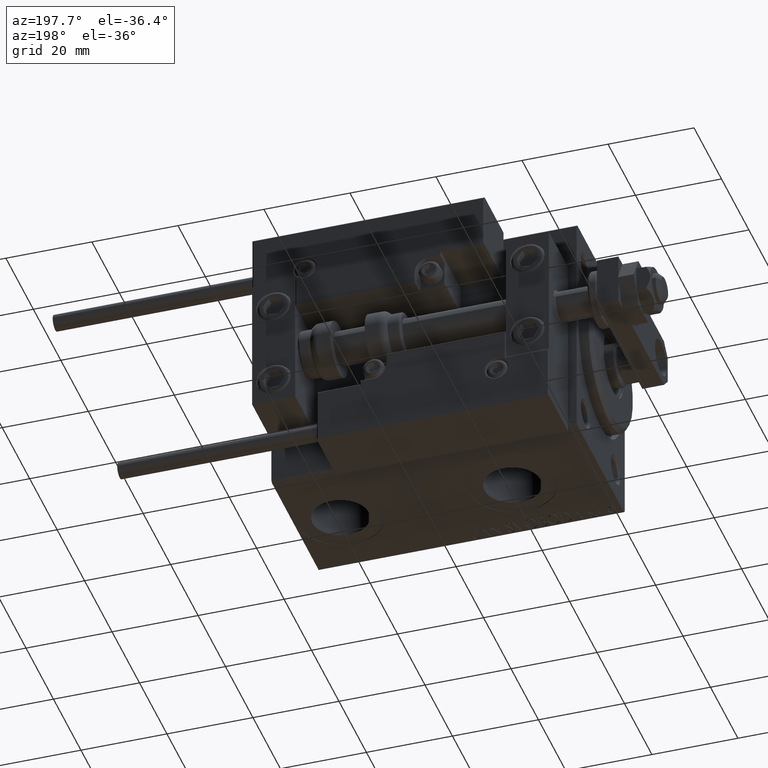
[diagram: clean part render]
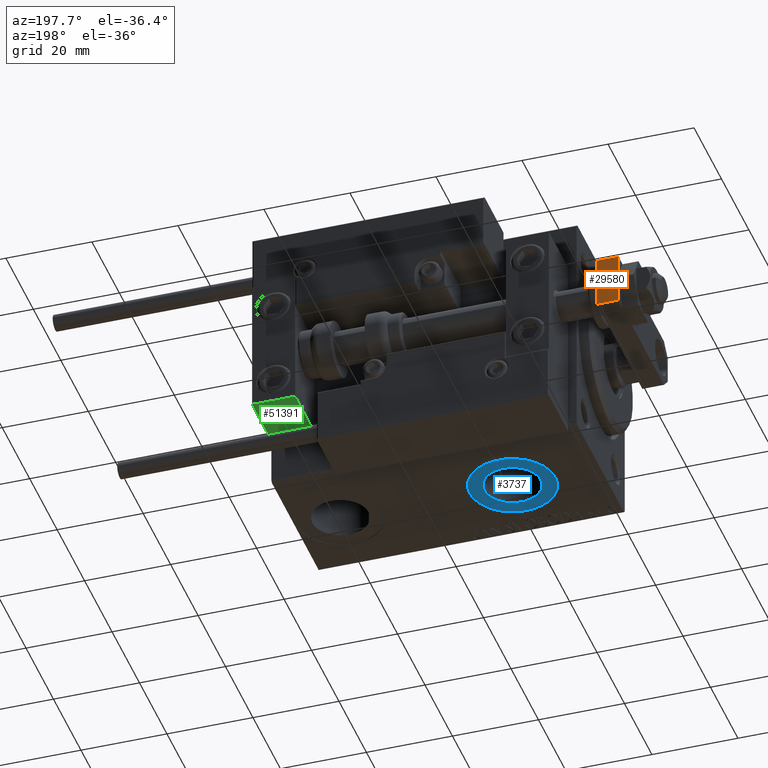
[diagram: same view with three faces highlighted in distinct colors, each labeled with its STEP entity id]
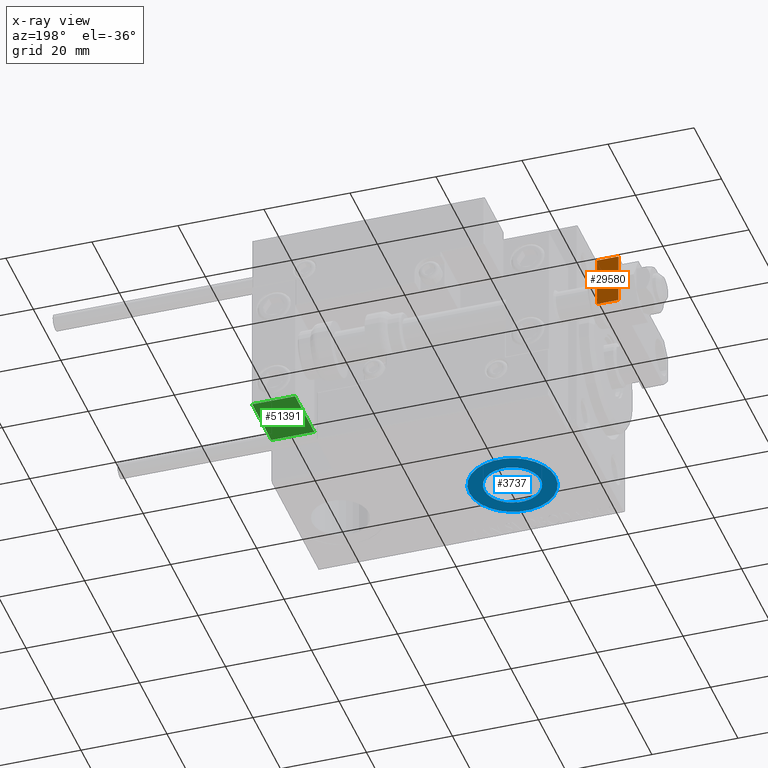
[diagram: x-ray of the same camera — body ghosted, the three highlighted faces saturated]
A machine part, auxiliary view with three faces highlighted in distinct colors.
The next image is the same camera in x-ray (body ghosted, the three faces saturated) — at least one of them is partly hidden behind the body in this view.
Their STEP definitions:

[orange] entity #29580 — the highlighted planar face has unit normal (0, -1, 0).
#241 = LINE ( 'NONE', #16442, #40076 ) ;
#3455 = CARTESIAN_POINT ( 'NONE',  ( 6.000000000000008882, 36.00000000000000000, 5.000000000000000000 ) ) ;
#3721 = CARTESIAN_POINT ( 'NONE',  ( 6.000000000000008882, 36.00000000000000000, 5.000000000000000000 ) ) ;
#6009 = VERTEX_POINT ( 'NONE', #46387 ) ;
#6025 = ORIENTED_EDGE ( 'NONE', *, *, #49235, .F. ) ;
#6916 = LINE ( 'NONE', #3455, #39169 ) ;
#13545 = LINE ( 'NONE', #29758, #50076 ) ;
#14186 = VERTEX_POINT ( 'NONE', #48061 ) ;
#16442 = CARTESIAN_POINT ( 'NONE',  ( -5.999999999999991118, 36.00000000000000000, 5.000000000000000000 ) ) ;
#19493 = VECTOR ( 'NONE', #31371, 1000.000000000000000 ) ;
#22062 = CARTESIAN_POINT ( 'NONE',  ( -5.999999999999991118, 36.00000000000000000, 0.000000000000000000 ) ) ;
#23372 = CARTESIAN_POINT ( 'NONE',  ( 6.000000000000008882, 36.00000000000000000, 5.000000000000000000 ) ) ;
#23550 = VERTEX_POINT ( 'NONE', #22062 ) ;
#24420 = PLANE ( 'NONE',  #48907 ) ;
#26293 = EDGE_CURVE ( 'NONE', #14186, #36553, #6916, .T. ) ;
#27792 = ORIENTED_EDGE ( 'NONE', *, *, #42167, .T. ) ;
#29580 = ADVANCED_FACE ( 'NONE', ( #39857 ), #24420, .F. ) ;
#29758 = CARTESIAN_POINT ( 'NONE',  ( 6.000000000000008882, 36.00000000000000000, 0.000000000000000000 ) ) ;
#31371 = DIRECTION ( 'NONE',  ( -0.000000000000000000, -0.000000000000000000, -1.000000000000000000 ) ) ;
#34709 = EDGE_LOOP ( 'NONE', ( #27792, #6025, #36156, #49383 ) ) ;
#35010 = CARTESIAN_POINT ( 'NONE',  ( -5.999999999999991118, 36.00000000000000000, 5.000000000000000000 ) ) ;
#35342 = LINE ( 'NONE', #23372, #19493 ) ;
#36156 = ORIENTED_EDGE ( 'NONE', *, *, #26293, .F. ) ;
#36553 = VERTEX_POINT ( 'NONE', #35010 ) ;
#37418 = DIRECTION ( 'NONE',  ( -0.000000000000000000, -0.000000000000000000, -1.000000000000000000 ) ) ;
#39169 = VECTOR ( 'NONE', #39573, 1000.000000000000000 ) ;
#39573 = DIRECTION ( 'NONE',  ( -1.000000000000000000, 0.000000000000000000, 0.000000000000000000 ) ) ;
#39857 = FACE_OUTER_BOUND ( 'NONE', #34709, .T. ) ;
#40076 = VECTOR ( 'NONE', #37418, 1000.000000000000000 ) ;
#42167 = EDGE_CURVE ( 'NONE', #6009, #23550, #13545, .T. ) ;
#43669 = EDGE_CURVE ( 'NONE', #14186, #6009, #35342, .T. ) ;
#46387 = CARTESIAN_POINT ( 'NONE',  ( 6.000000000000008882, 36.00000000000000000, 0.000000000000000000 ) ) ;
#48061 = CARTESIAN_POINT ( 'NONE',  ( 6.000000000000008882, 36.00000000000000000, 5.000000000000000000 ) ) ;
#48321 = DIRECTION ( 'NONE',  ( 0.000000000000000000, -1.000000000000000000, 0.000000000000000000 ) ) ;
#48907 = AXIS2_PLACEMENT_3D ( 'NONE', #3721, #48321, #52301 ) ;
#49235 = EDGE_CURVE ( 'NONE', #36553, #23550, #241, .T. ) ;
#49383 = ORIENTED_EDGE ( 'NONE', *, *, #43669, .T. ) ;
#49389 = DIRECTION ( 'NONE',  ( -1.000000000000000000, 0.000000000000000000, 0.000000000000000000 ) ) ;
#50076 = VECTOR ( 'NONE', #49389, 1000.000000000000000 ) ;
#52301 = DIRECTION ( 'NONE',  ( 0.000000000000000000, -0.000000000000000000, -1.000000000000000000 ) ) ;

[blue] entity #3737 — the highlighted planar face has unit normal (0, 0, -1).
#293 = FACE_BOUND ( 'NONE', #21978, .T. ) ;
#1585 = CIRCLE ( 'NONE', #42266, 10.00000000000000000 ) ;
#2611 = DIRECTION ( 'NONE',  ( -1.000000000000000000, 0.000000000000000000, 0.000000000000000000 ) ) ;
#3737 = ADVANCED_FACE ( 'NONE', ( #293, #32692 ), #21518, .T. ) ;
#7750 = DIRECTION ( 'NONE',  ( 0.000000000000000000, 0.000000000000000000, -1.000000000000000000 ) ) ;
#9296 = AXIS2_PLACEMENT_3D ( 'NONE', #47468, #18809, #2611 ) ;
#9901 = EDGE_LOOP ( 'NONE', ( #37328, #38949 ) ) ;
#10394 = DIRECTION ( 'NONE',  ( -1.000000000000000000, 0.000000000000000000, 0.000000000000000000 ) ) ;
#10909 = CARTESIAN_POINT ( 'NONE',  ( 20.50000000000000355, -2.726986211408916281E-15, -27.40000000000000924 ) ) ;
#11136 = CIRCLE ( 'NONE', #47605, 10.00000000000000000 ) ;
#14650 = DIRECTION ( 'NONE',  ( 0.000000000000000000, 0.000000000000000000, -1.000000000000000000 ) ) ;
#16272 = VERTEX_POINT ( 'NONE', #39111 ) ;
#16701 = EDGE_CURVE ( 'NONE', #47048, #36606, #1585, .T. ) ;
#18809 = DIRECTION ( 'NONE',  ( 0.000000000000000000, 0.000000000000000000, -1.000000000000000000 ) ) ;
#18892 = CIRCLE ( 'NONE', #28250, 6.580000000000002736 ) ;
#19954 = DIRECTION ( 'NONE',  ( -1.000000000000000000, 0.000000000000000000, 0.000000000000000000 ) ) ;
#20738 = CARTESIAN_POINT ( 'NONE',  ( 20.50000000000000355, -5.452980245086756226E-15, -27.40000000000000924 ) ) ;
#21116 = DIRECTION ( 'NONE',  ( -1.000000000000000000, 0.000000000000000000, 0.000000000000000000 ) ) ;
#21518 = PLANE ( 'NONE',  #43643 ) ;
#21978 = EDGE_LOOP ( 'NONE', ( #49275, #32609 ) ) ;
#22495 = EDGE_CURVE ( 'NONE', #36606, #47048, #11136, .T. ) ;
#23001 = VERTEX_POINT ( 'NONE', #39439 ) ;
#27548 = CARTESIAN_POINT ( 'NONE',  ( 30.50000000000000711, -4.228333445939403167E-15, -27.40000000000000924 ) ) ;
#28250 = AXIS2_PLACEMENT_3D ( 'NONE', #10909, #14650, #10394 ) ;
#29621 = DIRECTION ( 'NONE',  ( 0.000000000000000000, 0.000000000000000000, -1.000000000000000000 ) ) ;
#32609 = ORIENTED_EDGE ( 'NONE', *, *, #50873, .F. ) ;
#32692 = FACE_OUTER_BOUND ( 'NONE', #9901, .T. ) ;
#36606 = VERTEX_POINT ( 'NONE', #27548 ) ;
#37328 = ORIENTED_EDGE ( 'NONE', *, *, #16701, .T. ) ;
#37719 = CARTESIAN_POINT ( 'NONE',  ( 0.000000000000000000, 0.000000000000000000, -27.40000000000000924 ) ) ;
#38949 = ORIENTED_EDGE ( 'NONE', *, *, #22495, .T. ) ;
#38999 = CIRCLE ( 'NONE', #9296, 6.580000000000002736 ) ;
#39111 = CARTESIAN_POINT ( 'NONE',  ( 27.08000000000000540, -1.921168617569958028E-15, -27.40000000000000924 ) ) ;
#39439 = CARTESIAN_POINT ( 'NONE',  ( 13.92000000000000171, -2.726986211408916281E-15, -27.40000000000000924 ) ) ;
#40650 = CARTESIAN_POINT ( 'NONE',  ( 10.50000000000000355, -5.452980245086756226E-15, -27.40000000000000924 ) ) ;
#41447 = DIRECTION ( 'NONE',  ( -1.000000000000000000, 0.000000000000000000, -0.000000000000000000 ) ) ;
#42266 = AXIS2_PLACEMENT_3D ( 'NONE', #50046, #29621, #21116 ) ;
#43133 = EDGE_CURVE ( 'NONE', #23001, #16272, #38999, .T. ) ;
#43643 = AXIS2_PLACEMENT_3D ( 'NONE', #37719, #49137, #41447 ) ;
#47048 = VERTEX_POINT ( 'NONE', #40650 ) ;
#47468 = CARTESIAN_POINT ( 'NONE',  ( 20.50000000000000355, -2.726986211408916281E-15, -27.40000000000000924 ) ) ;
#47605 = AXIS2_PLACEMENT_3D ( 'NONE', #20738, #7750, #19954 ) ;
#49137 = DIRECTION ( 'NONE',  ( 0.000000000000000000, 0.000000000000000000, -1.000000000000000000 ) ) ;
#49275 = ORIENTED_EDGE ( 'NONE', *, *, #43133, .F. ) ;
#50046 = CARTESIAN_POINT ( 'NONE',  ( 20.50000000000000355, -5.452980245086756226E-15, -27.40000000000000924 ) ) ;
#50873 = EDGE_CURVE ( 'NONE', #16272, #23001, #18892, .T. ) ;

[green] entity #51391 — the highlighted planar face has unit normal (0, 0, -1).
#54 = DIRECTION ( 'NONE',  ( 0.000000000000000000, 0.000000000000000000, -1.000000000000000000 ) ) ;
#843 = DIRECTION ( 'NONE',  ( -1.000000000000000000, 0.000000000000000000, -0.000000000000000000 ) ) ;
#4711 = EDGE_CURVE ( 'NONE', #19155, #36424, #7291, .T. ) ;
#5591 = CARTESIAN_POINT ( 'NONE',  ( 10.00000000000000000, 7.000000000000000000, -16.00000000000000711 ) ) ;
#6544 = DIRECTION ( 'NONE',  ( -1.000000000000000000, -0.000000000000000000, -0.000000000000000000 ) ) ;
#7291 = LINE ( 'NONE', #15277, #21606 ) ;
#8283 = CARTESIAN_POINT ( 'NONE',  ( 10.00000000000000000, 7.000000000000000000, -16.00000000000000711 ) ) ;
#11055 = VERTEX_POINT ( 'NONE', #13965 ) ;
#11477 = PLANE ( 'NONE',  #38451 ) ;
#12436 = ORIENTED_EDGE ( 'NONE', *, *, #35043, .F. ) ;
#13965 = CARTESIAN_POINT ( 'NONE',  ( 0.000000000000000000, -7.000000000000000000, -16.00000000000000711 ) ) ;
#15277 = CARTESIAN_POINT ( 'NONE',  ( 10.00000000000000000, 7.000000000000000000, -16.00000000000000711 ) ) ;
#15895 = VECTOR ( 'NONE', #30550, 1000.000000000000000 ) ;
#18035 = ORIENTED_EDGE ( 'NONE', *, *, #4711, .T. ) ;
#19155 = VERTEX_POINT ( 'NONE', #5591 ) ;
#20935 = CARTESIAN_POINT ( 'NONE',  ( 10.00000000000000000, -7.000000000000000000, -16.00000000000000711 ) ) ;
#21606 = VECTOR ( 'NONE', #30688, 1000.000000000000000 ) ;
#21769 = LINE ( 'NONE', #37989, #15895 ) ;
#23376 = CARTESIAN_POINT ( 'NONE',  ( 0.000000000000000000, 7.000000000000000000, -16.00000000000000711 ) ) ;
#24343 = VECTOR ( 'NONE', #6544, 1000.000000000000000 ) ;
#27006 = CARTESIAN_POINT ( 'NONE',  ( 10.00000000000000000, -7.000000000000000000, -16.00000000000000711 ) ) ;
#27684 = CARTESIAN_POINT ( 'NONE',  ( 10.00000000000000000, 7.000000000000000000, -16.00000000000000711 ) ) ;
#30550 = DIRECTION ( 'NONE',  ( 0.000000000000000000, -1.000000000000000000, 0.000000000000000000 ) ) ;
#30688 = DIRECTION ( 'NONE',  ( 0.000000000000000000, -1.000000000000000000, 0.000000000000000000 ) ) ;
#31312 = ORIENTED_EDGE ( 'NONE', *, *, #49772, .F. ) ;
#32206 = LINE ( 'NONE', #8283, #40919 ) ;
#33658 = EDGE_CURVE ( 'NONE', #36424, #11055, #42681, .T. ) ;
#33945 = ORIENTED_EDGE ( 'NONE', *, *, #33658, .T. ) ;
#35043 = EDGE_CURVE ( 'NONE', #50825, #11055, #21769, .T. ) ;
#35131 = EDGE_LOOP ( 'NONE', ( #12436, #31312, #18035, #33945 ) ) ;
#36424 = VERTEX_POINT ( 'NONE', #20935 ) ;
#37989 = CARTESIAN_POINT ( 'NONE',  ( 0.000000000000000000, 7.000000000000000000, -16.00000000000000711 ) ) ;
#38451 = AXIS2_PLACEMENT_3D ( 'NONE', #27684, #54, #843 ) ;
#40164 = DIRECTION ( 'NONE',  ( -1.000000000000000000, -0.000000000000000000, -0.000000000000000000 ) ) ;
#40919 = VECTOR ( 'NONE', #40164, 1000.000000000000000 ) ;
#42681 = LINE ( 'NONE', #27006, #24343 ) ;
#47849 = FACE_OUTER_BOUND ( 'NONE', #35131, .T. ) ;
#49772 = EDGE_CURVE ( 'NONE', #19155, #50825, #32206, .T. ) ;
#50825 = VERTEX_POINT ( 'NONE', #23376 ) ;
#51391 = ADVANCED_FACE ( 'NONE', ( #47849 ), #11477, .T. ) ;